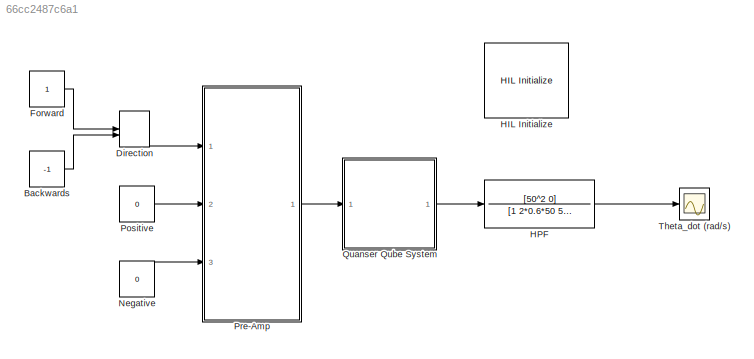
MODEL slx_66cc2487c6a1
KIND model
BLOCK [Constant] Backwards
  Value = -1
BLOCK [ManualSwitch] Direction
BLOCK [Constant] Forward
BLOCK [Reference] HIL Initialize  REF=quarc_library/Data Acquisition/Generic/Configuration/HIL Initialize
  AttributesFormatString = %<object_name> (%<board_type>-%<board_number>)
  Ports = []
  Priority = -99
  SourceBlock = quarc_library/Data Acquisition/Generic/Configuration/HIL Initialize
  SourceType = HIL Initialize
  UserDataPersistent = on
  active = off
  analog_input_channels = []
  analog_input_maximums = []
  analog_input_minimums = []
  analog_output_channels = [0:1]
  analog_output_maximums = 10
  analog_output_minimums = -10
  board_number = 0
  board_options = d0=pwm;d1=pwm;led=auto;update_rate=normal;decimation=1
  board_type = qube_servo_usb
  clock_modes = []
  digital_input_channels = []
  digital_output_channels = []
  digital_output_configuration = []
  encoder_channels = [0:1]
  encoder_filter_frequency = []
  exclusive = off
  final_analog_outputs = [0]
  final_digital_outputs = []
  final_other_outputs = []
  final_pwm_outputs = []
  hardware_clocks = [0]
  initial_analog_outputs = [0]
  initial_clock_frequencies = []
  initial_digital_outputs = []
  initial_encoder_counts = [0]
  initial_other_outputs = []
  initial_pwm_outputs = []
  object_name = HIL-1
  other_output_channels = []
  pwm_alignment = []
  pwm_channels = []
  pwm_configuration = []
  pwm_frequency = []
  pwm_leading_deadband = []
  pwm_modes = []
  pwm_polarity = []
  pwm_trailing_deadband = []
  quadrature = [4]
  set_analog_input_params_at_start = off
  set_analog_input_params_at_switch_in = off
  set_analog_output_params_at_start = on
  set_analog_output_params_at_switch_in = off
  set_analog_outputs_at_start = on
  set_analog_outputs_at_switch_in = off
  set_analog_outputs_at_switch_out = off
  set_analog_outputs_at_terminate = on
  set_analog_outputs_on_watchdog = off
  set_clock_frequencies_at_start = off
  set_clock_frequencies_at_switch_in = off
  set_clock_params_at_start = off
  set_clock_params_at_switch_in = off
  set_digital_output_params_at_start = off
  set_digital_output_params_at_switch_in = off
  set_digital_outputs_at_start = off
  set_digital_outputs_at_switch_in = off
  set_digital_outputs_at_switch_out = off
  set_digital_outputs_at_terminate = off
  set_digital_outputs_on_watchdog = off
  set_encoder_counts_at_start = on
  set_encoder_counts_at_switch_in = off
  set_encoder_params_at_start = on
  set_encoder_params_at_switch_in = off
  set_other_outputs_at_start = off
  set_other_outputs_at_switch_in = off
  set_other_outputs_at_switch_out = off
  set_other_outputs_at_terminate = off
  set_other_outputs_on_watchdog = off
  set_pwm_outputs_at_start = off
  set_pwm_outputs_at_switch_in = off
  set_pwm_outputs_at_switch_out = off
  set_pwm_outputs_at_terminate = off
  set_pwm_outputs_on_watchdog = off
  set_pwm_params_at_start = off
  set_pwm_params_at_switch_in = off
  watchdog_analog_outputs = 0
  watchdog_digital_outputs = []
  watchdog_other_outputs = []
  watchdog_pwm_outputs = []
BLOCK [TransferFcn] HPF
  Denominator = [1 2*0.6*50 50^2]
  Numerator = [50^2 0]
BLOCK [Constant] Negative
  Value = 0
BLOCK [Constant] Positive
  Value = 0
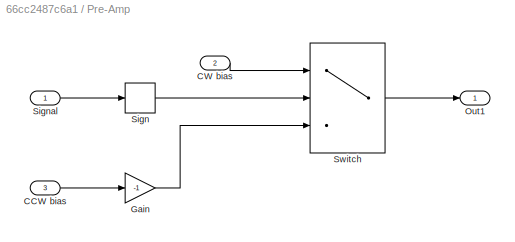
BLOCK [SubSystem] Pre-Amp
  Ports = [3, 1]
  RequestExecContextInheritance = off
BLOCK [Inport] Pre-Amp/CCW bias
  IconDisplay = Port number
  Port = 3
BLOCK [Inport] Pre-Amp/CW bias
  IconDisplay = Port number
  Port = 2
BLOCK [Gain] Pre-Amp/Gain
  Gain = -1
  OutDataTypeStr = Inherit: Inherit via internal rule
  ParamDataTypeStr = Inherit: Inherit via internal rule
  SaturateOnIntegerOverflow = off
BLOCK [Outport] Pre-Amp/Out1
  IconDisplay = Port number
BLOCK [Signum] Pre-Amp/Sign
BLOCK [Inport] Pre-Amp/Signal
  IconDisplay = Port number
BLOCK [Switch] Pre-Amp/Switch
  InputSameDT = off
  SaturateOnIntegerOverflow = off
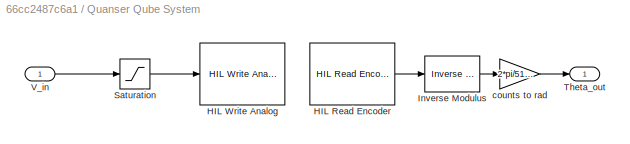
BLOCK [SubSystem] Quanser Qube System
  Ports = [1, 1]
  RequestExecContextInheritance = off
BLOCK [Reference] Quanser Qube System/HIL Read Encoder  REF=quarc_library/Data Acquisition/Generic/Immediate I//O/HIL Read Encoder
  AttributesFormatString = (%<object_name>)
  Ports = [0, 1]
  SourceBlock = quarc_library/Data Acquisition/Generic/Immediate I//O/HIL Read Encoder
  SourceType = HIL Read Encoder
  UserDataPersistent = on
  active = on
  channels = 0
  data_type = double
  data_type_mode = Inherit via back propagation
  object_name = HIL-1
  sample_time = qc_get_step_size
  vector_output = off
BLOCK [Reference] Quanser Qube System/HIL Write Analog  REF=quarc_library/Data Acquisition/Generic/Immediate I//O/HIL Write Analog
  AttributesFormatString = (%<object_name>)
  Ports = [1]
  SourceBlock = quarc_library/Data Acquisition/Generic/Immediate I//O/HIL Write Analog
  SourceType = HIL Write Analog
  UserDataPersistent = on
  active = off
  channels = 0
  object_name = HIL-1
  sample_time = -1
  vector_input = off
BLOCK [Reference] Quanser Qube System/Inverse Modulus  REF=quarc_library/Discontinuities/Inverse
Modulus
  Ports = [1, 1]
  SourceBlock = quarc_library/Discontinuities/Inverse\nModulus
  SourceType = Inverse Modulus
  max_x = Inf
  min_x = -Inf
  modulus = 2^16
  output_derivative = off
  output_revolutions = off
BLOCK [Saturate] Quanser Qube System/Saturation
  InputPortMap = u0
  LowerLimit = -6
  Ports = [1, 1]
  UpperLimit = 6
BLOCK [Outport] Quanser Qube System/Theta_out
  IconDisplay = Port number
BLOCK [Inport] Quanser Qube System/V_in
  IconDisplay = Port number
BLOCK [Gain] Quanser Qube System/counts to rad
  Gain = 2*pi/512/4
  OutDataTypeStr = Inherit: Inherit via internal rule
  ParamDataTypeStr = Inherit: Inherit via internal rule
  SaturateOnIntegerOverflow = off
BLOCK [Scope] Theta_dot (rad//s)
  Floating = off
  LimitDataPoints = off
  MaxDataPoints = 2500
  NumInputPorts = 1
  Ports = [1]
  SampleTime = 0
  SaveName = Output_Data
  SaveToWorkspace = on
  ShowLegends = off
  TimeRange = 30
  YMax = 50
  YMin = 0
LINE Backwards:1 -> Direction:2
LINE Direction:1 -> Pre-Amp:1
LINE Forward:1 -> Direction:1
LINE HPF:1 -> Theta_dot (rad//s):1
LINE Negative:1 -> Pre-Amp:3
LINE Positive:1 -> Pre-Amp:2
LINE Pre-Amp/CCW bias:1 -> Pre-Amp/Gain:1
LINE Pre-Amp/CW bias:1 -> Pre-Amp/Switch:1
LINE Pre-Amp/Gain:1 -> Pre-Amp/Switch:3
LINE Pre-Amp/Sign:1 -> Pre-Amp/Switch:2
LINE Pre-Amp/Signal:1 -> Pre-Amp/Sign:1
LINE Pre-Amp/Switch:1 -> Pre-Amp/Out1:1
LINE Pre-Amp:1 -> Quanser Qube System:1
LINE Quanser Qube System/HIL Read Encoder:1 -> Quanser Qube System/Inverse Modulus:1
LINE Quanser Qube System/Inverse Modulus:1 -> Quanser Qube System/counts to rad:1
LINE Quanser Qube System/Saturation:1 -> Quanser Qube System/HIL Write Analog:1
LINE Quanser Qube System/V_in:1 -> Quanser Qube System/Saturation:1
LINE Quanser Qube System/counts to rad:1 -> Quanser Qube System/Theta_out:1
LINE Quanser Qube System:1 -> HPF:1
